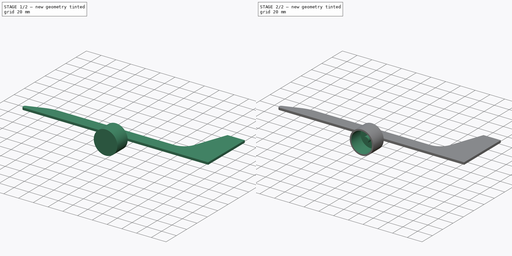
[diagram: build sequence overview — one tinted view per stage of 2, left to right]
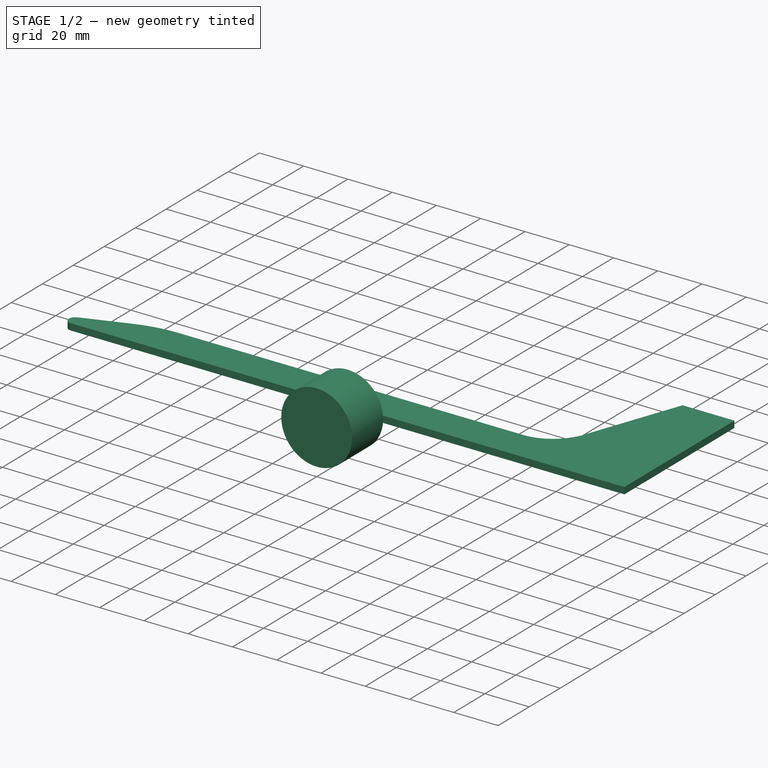
[diagram: stage 1 of 2 — iso view after this stage's code; geometry added in this stage tinted green]
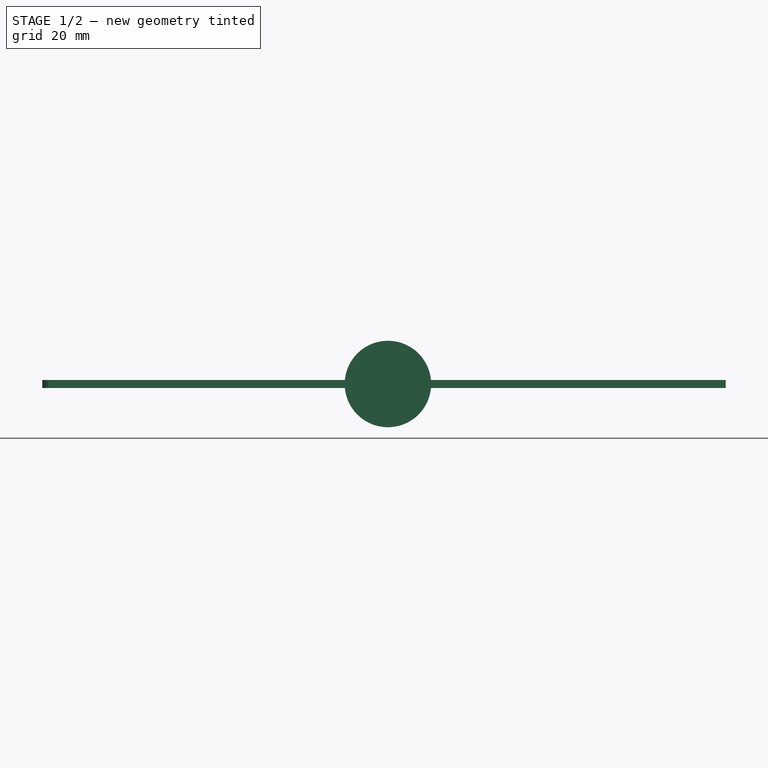
[diagram: stage 1 of 2 — front view after this stage's code; geometry added in this stage tinted green]
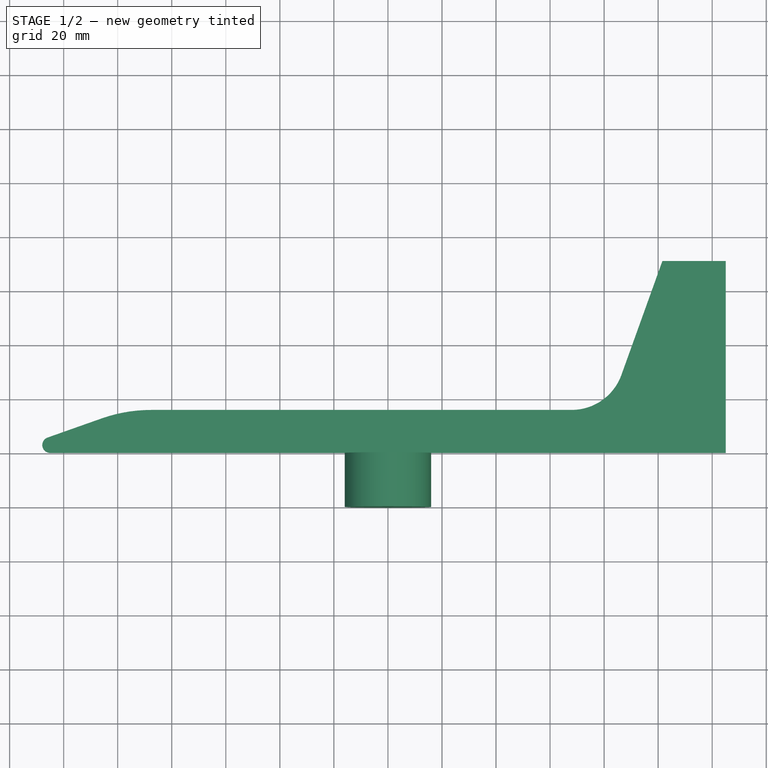
[diagram: stage 1 of 2 — top view after this stage's code; geometry added in this stage tinted green]
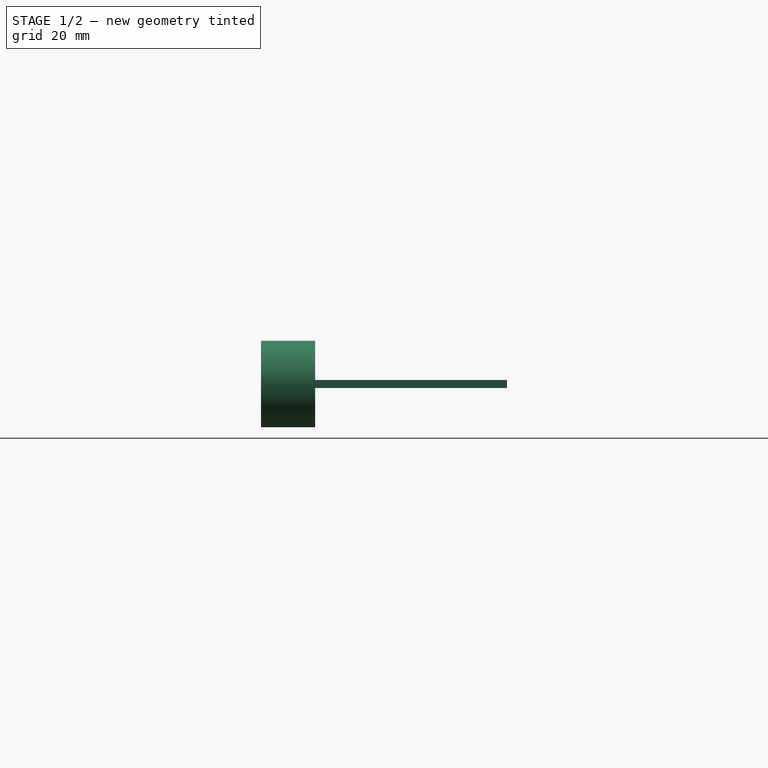
[diagram: stage 1 of 2 — right view after this stage's code; geometry added in this stage tinted green]
FCSTD DOCUMENT  (FreeCAD 0.18R16131 (Git))
Label: banderuola2
License: All rights reserved
LicenseURL: http://en.wikipedia.org/wiki/All_rights_reserved
objects: Sketcher::SketchObject×5, PartDesign::Pad×3, PartDesign::Body×2, PartDesign::Pocket×1
note: 15 computed .brp shape members not serialized (recipe doc carries the construction recipe); baked Part::Feature solids carry a one-line shape summary decoded from their .brp

FEATURE [Sketcher::SketchObject] Sketch004
  MapMode = 5
  sketch-geometry (10):
    g0: LineSegment StartX=-125.97 StartY=5.6522 StartZ=0 EndX=-105.956 EndY=12.7289 EndZ=0
    g1: LineSegment StartX=-87.5879 StartY=15.8805 StartZ=0 EndX=-56.3045 EndY=15.8805 EndZ=0
    g2: LineSegment StartX=-56.3045 StartY=15.8805 StartZ=0 EndX=67.9689 EndY=15.8805 EndZ=0
    g3: LineSegment StartX=86.4076 StartY=28.8425 StartZ=0 EndX=101.576 EndY=71.0039 EndZ=0
    g4: LineSegment StartX=101.576 StartY=71.0039 StartZ=0 EndX=125 EndY=71.0039 EndZ=0
    g5: LineSegment StartX=125 StartY=71.0039 StartZ=0 EndX=125 EndY=0 EndZ=0
    g6: LineSegment StartX=125 StartY=0 StartZ=0 EndX=-125 EndY=0 EndZ=0
    g7: ArcOfCircle CenterX=-87.5879 CenterY=-39.2184 CenterZ=0 NormalX=0 NormalY=0 NormalZ=1 AngleXU=0 Radius=55.0989 StartAngle=1.5708 EndAngle=1.91066
    g8: ArcOfCircle CenterX=67.9689 CenterY=35.4763 CenterZ=0 NormalX=0 NormalY=0 NormalZ=1 AngleXU=0 Radius=19.5958 StartAngle=4.71239 EndAngle=5.93783
    g9: ArcOfCircle CenterX=-125 CenterY=2.90931 CenterZ=0 NormalX=0 NormalY=0 NormalZ=1 AngleXU=0 Radius=2.90931 StartAngle=1.91066 EndAngle=4.71239
  constraints (18):
    c: Horizontal(g1)
    c: Coincident(g1,g2)
    c: Horizontal(g2)
    c: Coincident(g3,g4)
    c: Horizontal(g4)
    c: Coincident(g4,g5)
    c: PointOnObject(g5,g-1)
    c: Vertical(g5)
    c: Coincident(g5,g6)
    c: Horizontal(g6)
    c: Tangent(g0,g7) = 1.5708
    c: Tangent(g1,g7) = 1.5708
    c: Tangent(g2,g8) = -1.5708
    c: Tangent(g3,g8) = -1.5708
    c: Tangent(g0,g9) = 1.5708
    c: Tangent(g6,g9) = 1.5708
    c: DistanceX(g6,g6) = 250
    c: DistanceX(g-1,g5) = 125
FEATURE [Sketcher::SketchObject] CopySketch005
  Placement = pos=(0,0,0) rot=(1,0,0;1.5708rad)
  sketch-geometry (1):
    g0: Circle CenterX=0 CenterY=0 CenterZ=0 NormalX=0 NormalY=0 NormalZ=1 AngleXU=0 Radius=16
  constraints (2):
    c: Coincident(g0,g-1)
    c: Radius(g0) = 16
FEATURE [PartDesign::Pad] Pad
  Length = 20
  Length2 = 100
  Placement = pos=(0,0,0) rot=(1,0,0;1.5708rad)
  Profile = -> CopySketch005
  Type = 0
FEATURE [PartDesign::Body] Body002
  Group = -> [Pad,Pocket,Pad001]
  Origin = -> Origin002
  Tip = -> Pad001
FEATURE [Sketcher::SketchObject] CopySketch004
  sketch-geometry (10):
    g0: LineSegment StartX=-125.97 StartY=5.6522 StartZ=0 EndX=-105.956 EndY=12.7289 EndZ=0
    g1: LineSegment StartX=-87.5879 StartY=15.8805 StartZ=0 EndX=-56.3045 EndY=15.8805 EndZ=0
    g2: LineSegment StartX=-56.3045 StartY=15.8805 StartZ=0 EndX=67.9689 EndY=15.8805 EndZ=0
    g3: LineSegment StartX=86.4076 StartY=28.8425 StartZ=0 EndX=101.576 EndY=71.0039 EndZ=0
    g4: LineSegment StartX=101.576 StartY=71.0039 StartZ=0 EndX=125 EndY=71.0039 EndZ=0
    g5: LineSegment StartX=125 StartY=71.0039 StartZ=0 EndX=125 EndY=0 EndZ=0
    g6: LineSegment StartX=125 StartY=0 StartZ=0 EndX=-125 EndY=0 EndZ=0
    g7: ArcOfCircle CenterX=-87.5879 CenterY=-39.2184 CenterZ=0 NormalX=0 NormalY=0 NormalZ=1 AngleXU=0 Radius=55.0989 StartAngle=1.5708 EndAngle=1.91066
    g8: ArcOfCircle CenterX=67.9689 CenterY=35.4763 CenterZ=0 NormalX=0 NormalY=0 NormalZ=1 AngleXU=0 Radius=19.5958 StartAngle=4.71239 EndAngle=5.93783
    g9: ArcOfCircle CenterX=-125 CenterY=2.90931 CenterZ=0 NormalX=0 NormalY=0 NormalZ=1 AngleXU=0 Radius=2.90931 StartAngle=1.91066 EndAngle=4.71239
  constraints (18):
    c: Horizontal(g1)
    c: Coincident(g1,g2)
    c: Horizontal(g2)
    c: Coincident(g3,g4)
    c: Horizontal(g4)
    c: Coincident(g4,g5)
    c: PointOnObject(g5,g-1)
    c: Vertical(g5)
    c: Coincident(g5,g6)
    c: Horizontal(g6)
    c: Tangent(g0,g7) = 1.5708
    c: Tangent(g1,g7) = 1.5708
    c: Tangent(g2,g8) = -1.5708
    c: Tangent(g3,g8) = -1.5708
    c: Tangent(g0,g9) = 1.5708
    c: Tangent(g6,g9) = 1.5708
    c: DistanceX(g6,g6) = 250
    c: DistanceX(g-1,g5) = 125
FEATURE [PartDesign::Pad] Pad002
  Length = 3
  Length2 = 100
  Midplane = true
  Profile = -> CopySketch004
  Type = 0
FEATURE [PartDesign::Body] Body001
  Group = -> [Pad002]
  Origin = -> Origin001
  Tip = -> Pad002
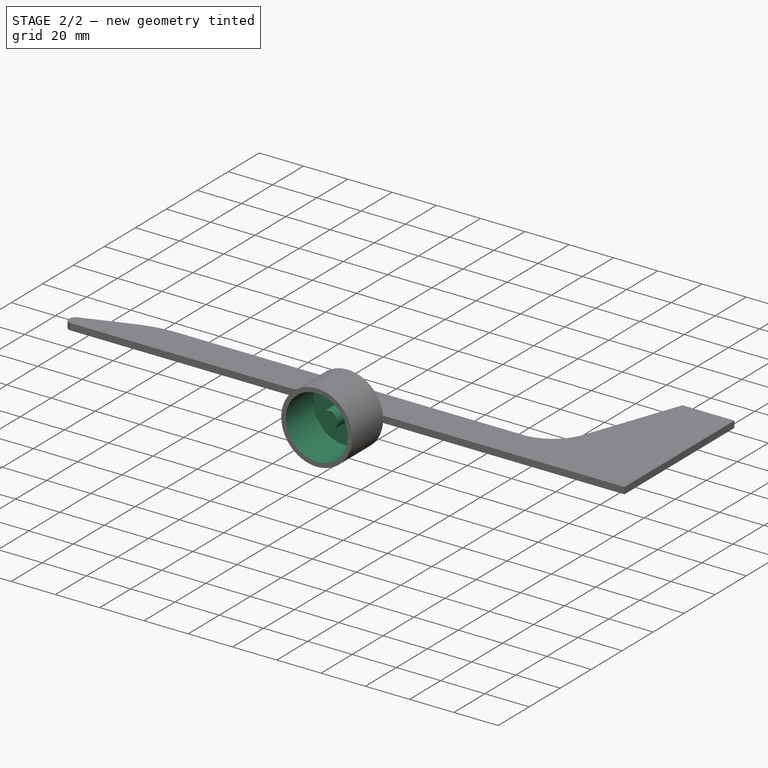
[diagram: stage 2 of 2 — iso view after this stage's code; geometry added in this stage tinted green]
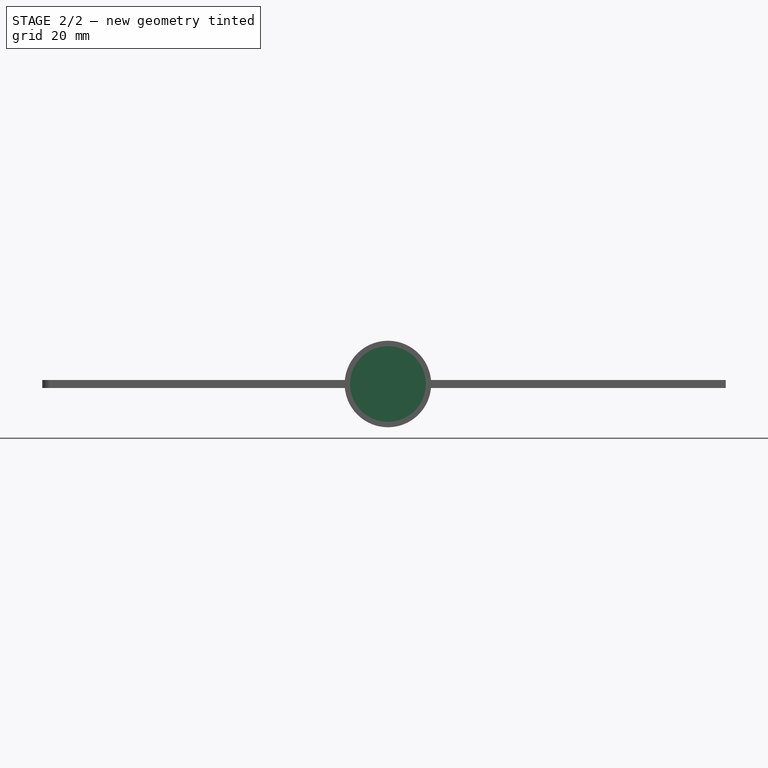
[diagram: stage 2 of 2 — front view after this stage's code; geometry added in this stage tinted green]
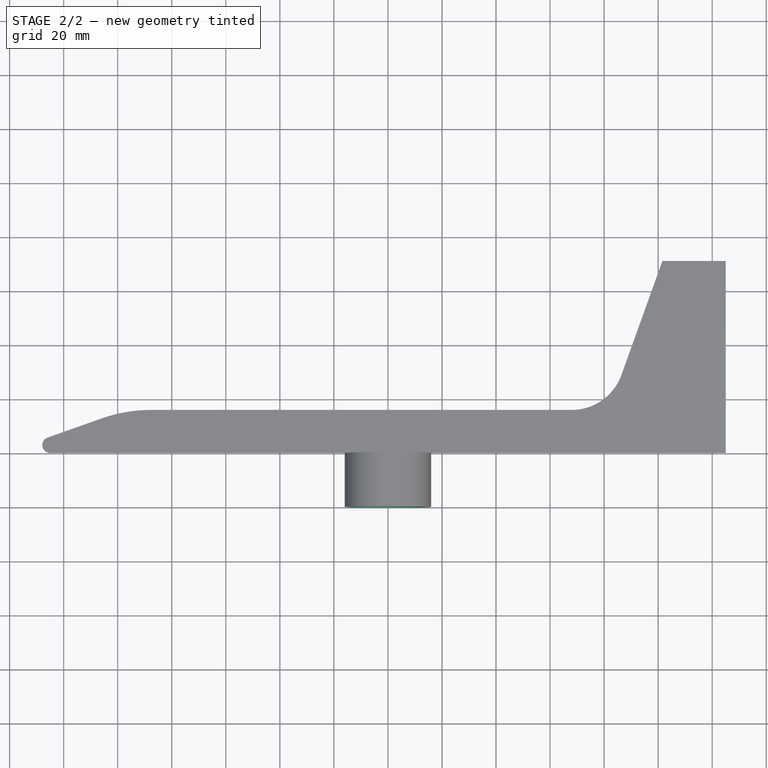
[diagram: stage 2 of 2 — top view after this stage's code; geometry added in this stage tinted green]
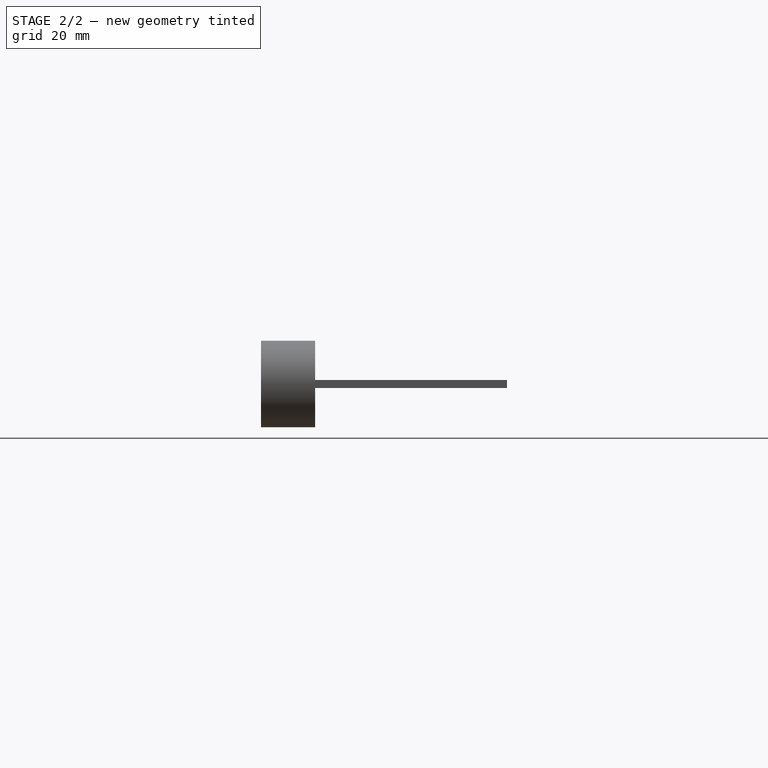
[diagram: stage 2 of 2 — right view after this stage's code; geometry added in this stage tinted green]
FEATURE [Sketcher::SketchObject] CopySketch006
  Placement = pos=(0,-20,6.7e-15) rot=(1,0,0;1.5708rad)
  sketch-geometry (1):
    g0: Circle CenterX=0 CenterY=0 CenterZ=0 NormalX=0 NormalY=0 NormalZ=1 AngleXU=0 Radius=14
  constraints (2):
    c: Coincident(g0,g-1)
    c: Radius(g0) = 14
FEATURE [PartDesign::Pocket] Pocket
  BaseFeature = -> Pad
  Length = 18
  Length2 = 100
  Placement = pos=(0,0,0) rot=(1,0,0;1.5708rad)
  Profile = -> CopySketch006
  Type = 0
FEATURE [Sketcher::SketchObject] CopySketch007
  Placement = pos=(0,-2,8e-16) rot=(1,0,0;1.5708rad)
  sketch-geometry (1):
    g0: Circle CenterX=0 CenterY=0 CenterZ=0 NormalX=0 NormalY=0 NormalZ=1 AngleXU=0 Radius=3.8
  constraints (2):
    c: Coincident(g0,g-1)
    c: Radius(g0) = 3.8
FEATURE [PartDesign::Pad] Pad001
  BaseFeature = -> Pocket
  Length = 10
  Length2 = 100
  Placement = pos=(0,0,0) rot=(1,0,0;1.5708rad)
  Profile = -> CopySketch007
  Type = 0
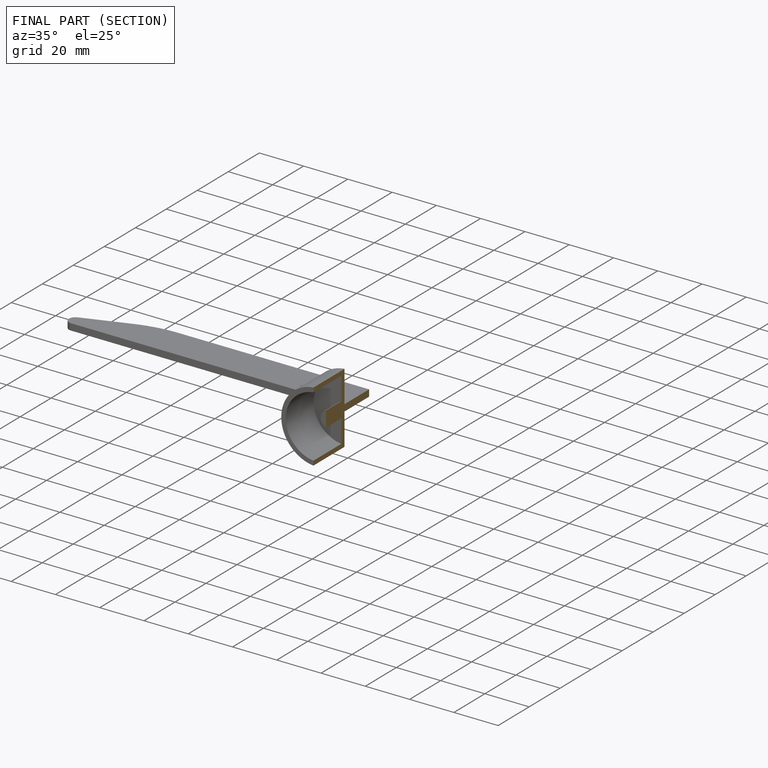
[diagram: finished part — half-section view (interior)]
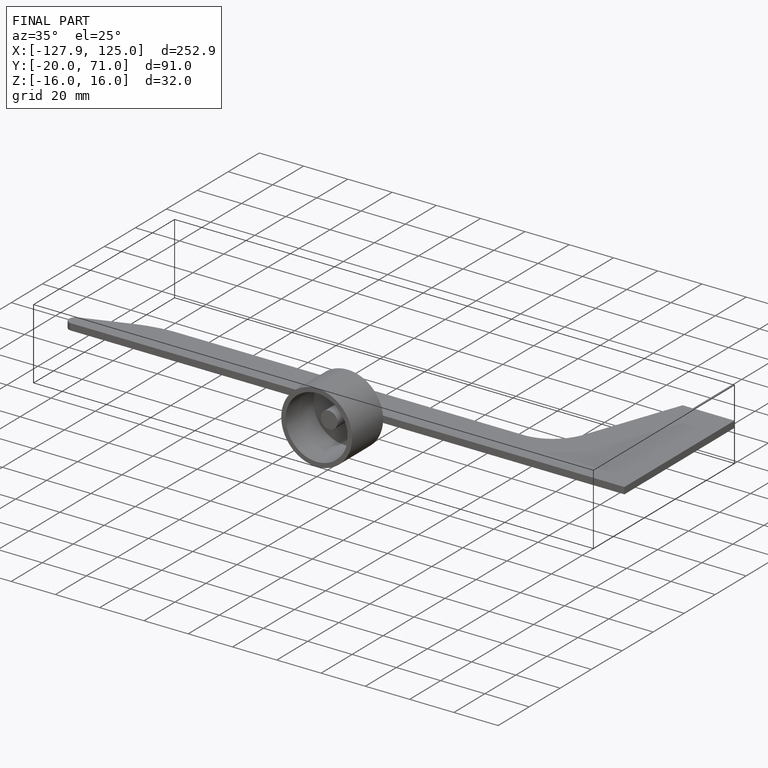
[diagram: finished part — iso view with bounding-box wireframe]
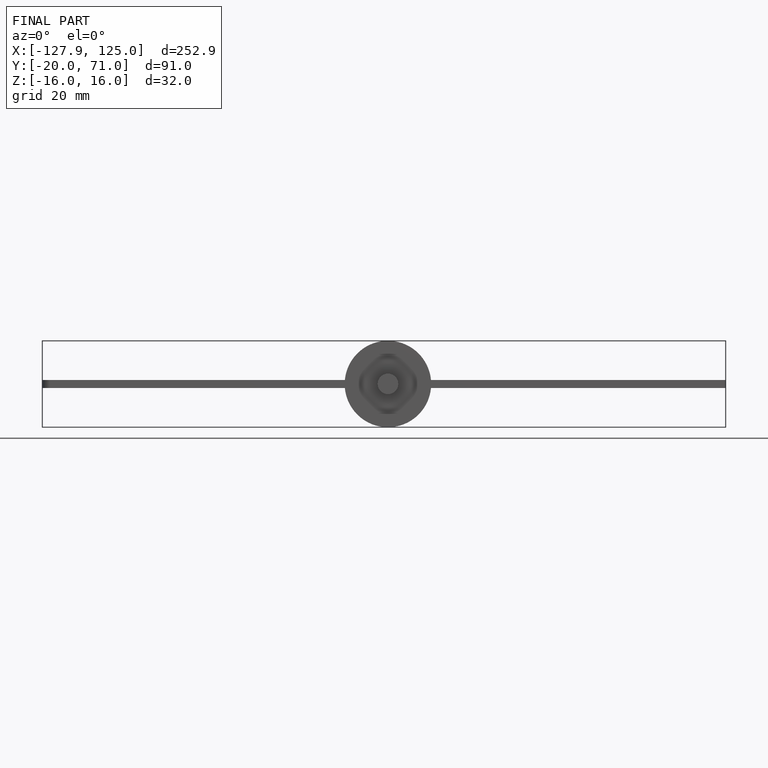
[diagram: finished part — front view with bounding-box wireframe]
